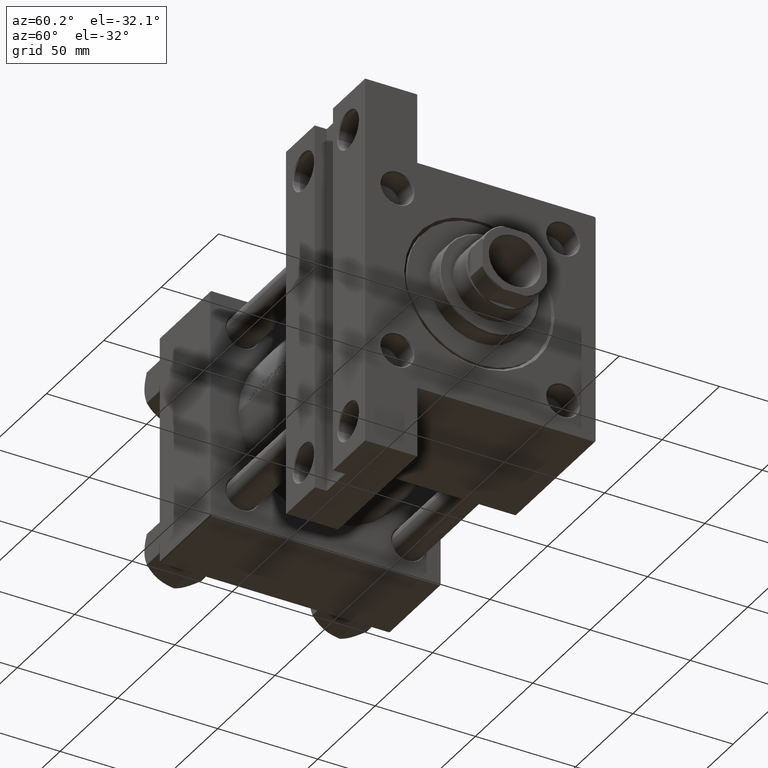
[diagram: clean part render]
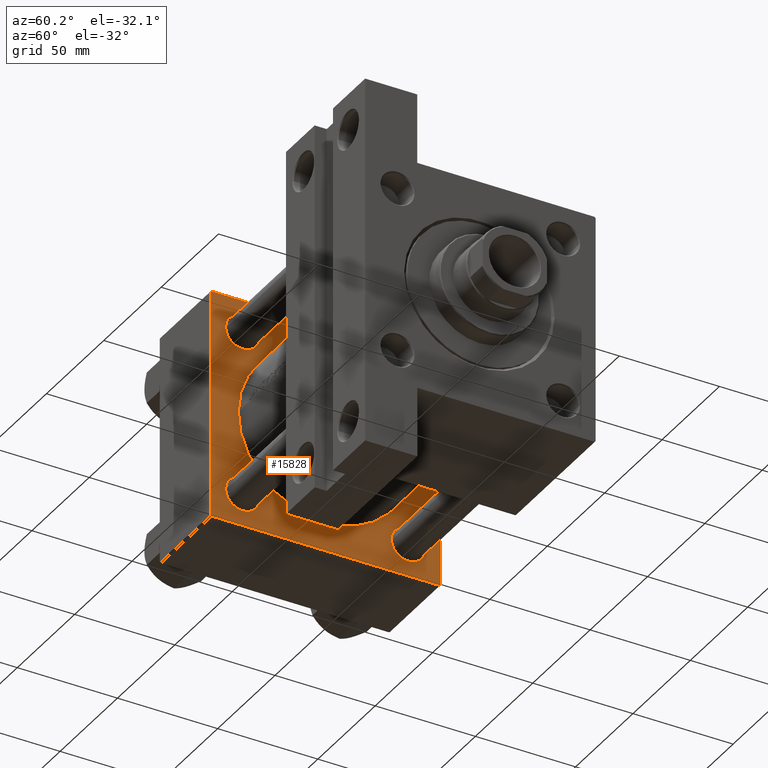
[diagram: same view with one face highlighted and labeled with its STEP entity id]
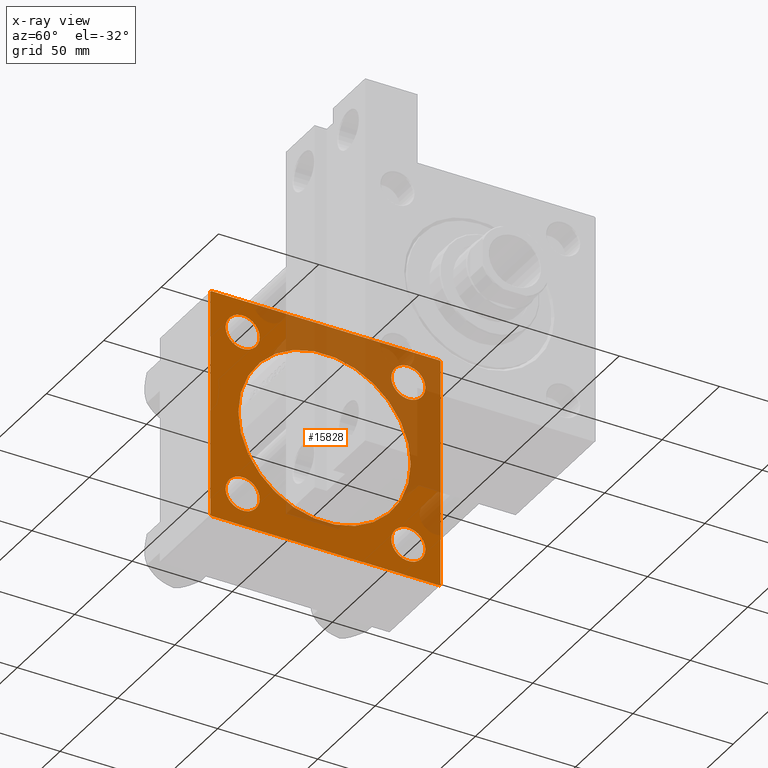
[diagram: x-ray of the same camera — body ghosted, the highlighted face saturated]
A machine part, auxiliary view. The second image highlights one B-rep face of the part: STEP entity #15828.
The next image is the same camera in x-ray: the body ghosted, the highlighted face saturated — about 38% of this face is hidden behind the body in this view.
In plain terms, the highlighted planar face has unit normal (-1, 0, -0).
Its self-contained STEP definition (entity closure, byte-faithful):
#458 = CARTESIAN_POINT ( 'NONE',  ( 44.00000000000000000, -41.34999999999998721, 49.85000000000004405 ) ) ;
#501 = CIRCLE ( 'NONE', #29230, 8.500000000000035527 ) ;
#895 = ORIENTED_EDGE ( 'NONE', *, *, #44408, .T. ) ;
#935 = CARTESIAN_POINT ( 'NONE',  ( 44.00000000000000000, 57.49999999999999289, -57.49999999999999289 ) ) ;
#1315 = ORIENTED_EDGE ( 'NONE', *, *, #16071, .F. ) ;
#1624 = CIRCLE ( 'NONE', #28807, 43.00000000000000000 ) ;
#1726 = ORIENTED_EDGE ( 'NONE', *, *, #19171, .F. ) ;
#2239 = ORIENTED_EDGE ( 'NONE', *, *, #23265, .T. ) ;
#3220 = VERTEX_POINT ( 'NONE', #15209 ) ;
#3495 = CARTESIAN_POINT ( 'NONE',  ( 44.00000000000000000, -57.00000000000000711, -57.50000000000000711 ) ) ;
#3522 = CARTESIAN_POINT ( 'NONE',  ( 44.00000000000000000, -57.00000000000000711, -57.50000000000000711 ) ) ;
#4137 = DIRECTION ( 'NONE',  ( 0.000000000000000000, -1.000000000000000000, -1.206764157201257045E-16 ) ) ;
#4642 = VECTOR ( 'NONE', #4137, 1000.000000000000000 ) ;
#5221 = ORIENTED_EDGE ( 'NONE', *, *, #8762, .T. ) ;
#5426 = FACE_BOUND ( 'NONE', #17151, .T. ) ;
#5576 = CARTESIAN_POINT ( 'NONE',  ( 44.00000000000000000, 41.34999999999999432, -41.35000000000000142 ) ) ;
#6389 = VECTOR ( 'NONE', #41080, 1000.000000000000000 ) ;
#6752 = AXIS2_PLACEMENT_3D ( 'NONE', #43355, #29472, #32663 ) ;
#6801 = LINE ( 'NONE', #22101, #33137 ) ;
#7033 = LINE ( 'NONE', #25496, #31104 ) ;
#8529 = CIRCLE ( 'NONE', #26355, 8.500000000000035527 ) ;
#8540 = DIRECTION ( 'NONE',  ( 1.000000000000000000, -0.000000000000000000, 0.000000000000000000 ) ) ;
#8658 = DIRECTION ( 'NONE',  ( -1.000000000000000000, 0.000000000000000000, -0.000000000000000000 ) ) ;
#8762 = EDGE_CURVE ( 'NONE', #30950, #27391, #32703, .T. ) ;
#9298 = AXIS2_PLACEMENT_3D ( 'NONE', #28589, #21298, #43200 ) ;
#9516 = EDGE_CURVE ( 'NONE', #16428, #3220, #501, .T. ) ;
#9634 = EDGE_CURVE ( 'NONE', #9775, #47880, #6801, .T. ) ;
#9775 = VERTEX_POINT ( 'NONE', #19394 ) ;
#9813 = ORIENTED_EDGE ( 'NONE', *, *, #39466, .T. ) ;
#9817 = EDGE_CURVE ( 'NONE', #16927, #40271, #10146, .T. ) ;
#10146 = LINE ( 'NONE', #11103, #41833 ) ;
#10200 = EDGE_CURVE ( 'NONE', #44981, #45085, #47263, .T. ) ;
#10365 = CARTESIAN_POINT ( 'NONE',  ( 44.00000000000000000, 6.123233995736685917E-17, -0.4999999999999935052 ) ) ;
#11103 = CARTESIAN_POINT ( 'NONE',  ( 44.00000000000000000, -57.50000000000000711, 57.00000000000000711 ) ) ;
#11111 = EDGE_LOOP ( 'NONE', ( #1726, #30078, #33513, #9813, #18328, #19821, #33432, #5221 ) ) ;
#11381 = ORIENTED_EDGE ( 'NONE', *, *, #9516, .T. ) ;
#11484 = EDGE_LOOP ( 'NONE', ( #14538, #16770 ) ) ;
#11956 = DIRECTION ( 'NONE',  ( 0.000000000000000000, 0.000000000000000000, 1.000000000000000000 ) ) ;
#12495 = VECTOR ( 'NONE', #31560, 1000.000000000000114 ) ;
#12612 = CARTESIAN_POINT ( 'NONE',  ( 44.00000000000000000, 57.00000000000000711, 57.50000000000000711 ) ) ;
#13119 = DIRECTION ( 'NONE',  ( 0.000000000000000000, 0.000000000000000000, 1.000000000000000000 ) ) ;
#13390 = EDGE_CURVE ( 'NONE', #19067, #32353, #8529, .T. ) ;
#13772 = DIRECTION ( 'NONE',  ( 1.000000000000000000, -0.000000000000000000, 0.000000000000000000 ) ) ;
#14316 = EDGE_CURVE ( 'NONE', #24013, #16439, #47423, .T. ) ;
#14371 = CARTESIAN_POINT ( 'NONE',  ( 44.00000000000000000, 41.34999999999999432, -32.84999999999997300 ) ) ;
#14433 = CIRCLE ( 'NONE', #41595, 8.500000000000035527 ) ;
#14458 = DIRECTION ( 'NONE',  ( 0.000000000000000000, 0.7071067811865474617, -0.7071067811865474617 ) ) ;
#14538 = ORIENTED_EDGE ( 'NONE', *, *, #26483, .T. ) ;
#14599 = CIRCLE ( 'NONE', #44111, 8.500000000000035527 ) ;
#14788 = EDGE_CURVE ( 'NONE', #40271, #30950, #7033, .T. ) ;
#15097 = LINE ( 'NONE', #44545, #4642 ) ;
#15209 = CARTESIAN_POINT ( 'NONE',  ( 44.00000000000000000, 41.34999999999999432, -49.85000000000003695 ) ) ;
#15828 = ADVANCED_FACE ( 'NONE', ( #20494, #5426, #17578, #24869, #28272, #46540 ), #32420, .F. ) ;
#15970 = CARTESIAN_POINT ( 'NONE',  ( 44.00000000000000000, 41.34999999999999432, 32.84999999999997300 ) ) ;
#16071 = EDGE_CURVE ( 'NONE', #16439, #24013, #1624, .T. ) ;
#16412 = CARTESIAN_POINT ( 'NONE',  ( 44.00000000000000000, 57.00000000000002132, -57.49999999999999289 ) ) ;
#16428 = VERTEX_POINT ( 'NONE', #14371 ) ;
#16439 = VERTEX_POINT ( 'NONE', #25053 ) ;
#16770 = ORIENTED_EDGE ( 'NONE', *, *, #13390, .T. ) ;
#16927 = VERTEX_POINT ( 'NONE', #19249 ) ;
#16946 = VECTOR ( 'NONE', #34167, 1000.000000000000114 ) ;
#16963 = CARTESIAN_POINT ( 'NONE',  ( 44.00000000000000000, -57.50000000000000711, -57.00000000000000711 ) ) ;
#17151 = EDGE_LOOP ( 'NONE', ( #26413, #11381 ) ) ;
#17578 = FACE_BOUND ( 'NONE', #11484, .T. ) ;
#18148 = CARTESIAN_POINT ( 'NONE',  ( 44.00000000000000000, 41.34999999999999432, 49.85000000000003695 ) ) ;
#18152 = DIRECTION ( 'NONE',  ( -1.000000000000000000, 0.000000000000000000, -0.000000000000000000 ) ) ;
#18225 = DIRECTION ( 'NONE',  ( 0.000000000000000000, 0.000000000000000000, -1.000000000000000000 ) ) ;
#18328 = ORIENTED_EDGE ( 'NONE', *, *, #37512, .T. ) ;
#18383 = CARTESIAN_POINT ( 'NONE',  ( 44.00000000000000000, 41.34999999999999432, 41.35000000000000142 ) ) ;
#18872 = AXIS2_PLACEMENT_3D ( 'NONE', #20314, #8658, #24448 ) ;
#19067 = VERTEX_POINT ( 'NONE', #458 ) ;
#19171 = EDGE_CURVE ( 'NONE', #43303, #27391, #34262, .T. ) ;
#19249 = CARTESIAN_POINT ( 'NONE',  ( 44.00000000000000000, -57.00000000000003553, 57.49999999999999289 ) ) ;
#19394 = CARTESIAN_POINT ( 'NONE',  ( 44.00000000000000000, 57.49999999999999289, 57.00000000000003553 ) ) ;
#19821 = ORIENTED_EDGE ( 'NONE', *, *, #9817, .T. ) ;
#20172 = ORIENTED_EDGE ( 'NONE', *, *, #28995, .T. ) ;
#20249 = CARTESIAN_POINT ( 'NONE',  ( 44.00000000000000000, 0.000000000000000000, 0.000000000000000000 ) ) ;
#20314 = CARTESIAN_POINT ( 'NONE',  ( 44.00000000000000000, -41.34999999999998721, -41.35000000000000853 ) ) ;
#20410 = DIRECTION ( 'NONE',  ( -1.000000000000000000, 0.000000000000000000, -0.000000000000000000 ) ) ;
#20494 = FACE_BOUND ( 'NONE', #40577, .T. ) ;
#20715 = CIRCLE ( 'NONE', #6752, 8.500000000000035527 ) ;
#21298 = DIRECTION ( 'NONE',  ( -1.000000000000000000, 0.000000000000000000, -0.000000000000000000 ) ) ;
#21347 = VERTEX_POINT ( 'NONE', #18148 ) ;
#21496 = EDGE_LOOP ( 'NONE', ( #20172, #2239 ) ) ;
#21964 = CIRCLE ( 'NONE', #18872, 8.500000000000035527 ) ;
#22091 = DIRECTION ( 'NONE',  ( 0.000000000000000000, 0.000000000000000000, -1.000000000000000000 ) ) ;
#22101 = CARTESIAN_POINT ( 'NONE',  ( 44.00000000000000000, 57.49999999999999289, 57.50000000000000711 ) ) ;
#22220 = EDGE_CURVE ( 'NONE', #43303, #47880, #22735, .T. ) ;
#22497 = DIRECTION ( 'NONE',  ( 0.000000000000000000, 0.000000000000000000, 1.000000000000000000 ) ) ;
#22735 = LINE ( 'NONE', #37810, #16946 ) ;
#22935 = VECTOR ( 'NONE', #14458, 1000.000000000000114 ) ;
#23091 = CARTESIAN_POINT ( 'NONE',  ( 44.00000000000000000, -41.34999999999998721, -41.35000000000000853 ) ) ;
#23265 = EDGE_CURVE ( 'NONE', #21347, #35845, #14433, .T. ) ;
#23310 = VERTEX_POINT ( 'NONE', #28001 ) ;
#24013 = VERTEX_POINT ( 'NONE', #48094 ) ;
#24448 = DIRECTION ( 'NONE',  ( 0.000000000000000000, 0.000000000000000000, 1.000000000000000000 ) ) ;
#24560 = ORIENTED_EDGE ( 'NONE', *, *, #14316, .F. ) ;
#24869 = FACE_BOUND ( 'NONE', #21496, .T. ) ;
#25053 = CARTESIAN_POINT ( 'NONE',  ( 44.00000000000000000, 5.327213576290985256E-15, -43.49999999999999289 ) ) ;
#25496 = CARTESIAN_POINT ( 'NONE',  ( 44.00000000000000000, -57.50000000000000711, 57.49999999999999289 ) ) ;
#25911 = DIRECTION ( 'NONE',  ( -0.000000000000000000, -0.7071067811865376918, -0.7071067811865573427 ) ) ;
#26355 = AXIS2_PLACEMENT_3D ( 'NONE', #33855, #28573, #32482 ) ;
#26413 = ORIENTED_EDGE ( 'NONE', *, *, #36687, .T. ) ;
#26483 = EDGE_CURVE ( 'NONE', #32353, #19067, #20715, .T. ) ;
#27391 = VERTEX_POINT ( 'NONE', #3522 ) ;
#28001 = CARTESIAN_POINT ( 'NONE',  ( 44.00000000000000000, 57.00000000000000711, 57.50000000000000711 ) ) ;
#28272 = FACE_BOUND ( 'NONE', #36426, .T. ) ;
#28573 = DIRECTION ( 'NONE',  ( -1.000000000000000000, 0.000000000000000000, -0.000000000000000000 ) ) ;
#28589 = CARTESIAN_POINT ( 'NONE',  ( 44.00000000000000000, 41.34999999999999432, -41.35000000000000142 ) ) ;
#28807 = AXIS2_PLACEMENT_3D ( 'NONE', #45517, #8540, #11956 ) ;
#28995 = EDGE_CURVE ( 'NONE', #35845, #21347, #14599, .T. ) ;
#29230 = AXIS2_PLACEMENT_3D ( 'NONE', #5576, #20410, #35980 ) ;
#29472 = DIRECTION ( 'NONE',  ( -1.000000000000000000, 0.000000000000000000, -0.000000000000000000 ) ) ;
#29722 = CARTESIAN_POINT ( 'NONE',  ( 44.00000000000000000, -57.50000000000000711, 57.00000000000000711 ) ) ;
#30078 = ORIENTED_EDGE ( 'NONE', *, *, #22220, .T. ) ;
#30711 = DIRECTION ( 'NONE',  ( 0.000000000000000000, 0.000000000000000000, 1.000000000000000000 ) ) ;
#30950 = VERTEX_POINT ( 'NONE', #16963 ) ;
#31104 = VECTOR ( 'NONE', #22091, 1000.000000000000000 ) ;
#31560 = DIRECTION ( 'NONE',  ( 0.000000000000000000, -0.7071067811865573427, 0.7071067811865376918 ) ) ;
#32353 = VERTEX_POINT ( 'NONE', #39231 ) ;
#32420 = PLANE ( 'NONE',  #44356 ) ;
#32482 = DIRECTION ( 'NONE',  ( 0.000000000000000000, 0.000000000000000000, 1.000000000000000000 ) ) ;
#32663 = DIRECTION ( 'NONE',  ( 0.000000000000000000, 0.000000000000000000, 1.000000000000000000 ) ) ;
#32703 = LINE ( 'NONE', #3495, #22935 ) ;
#33137 = VECTOR ( 'NONE', #18225, 1000.000000000000000 ) ;
#33432 = ORIENTED_EDGE ( 'NONE', *, *, #14788, .T. ) ;
#33513 = ORIENTED_EDGE ( 'NONE', *, *, #9634, .F. ) ;
#33855 = CARTESIAN_POINT ( 'NONE',  ( 44.00000000000000000, -41.34999999999998721, 41.35000000000000853 ) ) ;
#33978 = CARTESIAN_POINT ( 'NONE',  ( 44.00000000000000000, -41.34999999999998721, -49.85000000000004405 ) ) ;
#34167 = DIRECTION ( 'NONE',  ( -0.000000000000000000, 0.7071067811865376918, 0.7071067811865573427 ) ) ;
#34262 = LINE ( 'NONE', #935, #6389 ) ;
#34982 = AXIS2_PLACEMENT_3D ( 'NONE', #10365, #13772, #36853 ) ;
#35845 = VERTEX_POINT ( 'NONE', #15970 ) ;
#35980 = DIRECTION ( 'NONE',  ( 0.000000000000000000, 0.000000000000000000, 1.000000000000000000 ) ) ;
#36426 = EDGE_LOOP ( 'NONE', ( #24560, #1315 ) ) ;
#36687 = EDGE_CURVE ( 'NONE', #3220, #16428, #41133, .T. ) ;
#36853 = DIRECTION ( 'NONE',  ( 0.000000000000000000, 0.000000000000000000, 1.000000000000000000 ) ) ;
#37512 = EDGE_CURVE ( 'NONE', #23310, #16927, #15097, .T. ) ;
#37810 = CARTESIAN_POINT ( 'NONE',  ( 44.00000000000000000, 57.49999999999999289, -57.00000000000000711 ) ) ;
#38247 = CARTESIAN_POINT ( 'NONE',  ( 44.00000000000000000, 41.34999999999999432, 41.35000000000000142 ) ) ;
#38993 = DIRECTION ( 'NONE',  ( -1.000000000000000000, 0.000000000000000000, -0.000000000000000000 ) ) ;
#39231 = CARTESIAN_POINT ( 'NONE',  ( 44.00000000000000000, -41.34999999999998721, 32.84999999999997300 ) ) ;
#39466 = EDGE_CURVE ( 'NONE', #9775, #23310, #42510, .T. ) ;
#40129 = CARTESIAN_POINT ( 'NONE',  ( 44.00000000000000000, 57.49999999999999289, -57.00000000000000711 ) ) ;
#40271 = VERTEX_POINT ( 'NONE', #29722 ) ;
#40363 = ORIENTED_EDGE ( 'NONE', *, *, #10200, .T. ) ;
#40577 = EDGE_LOOP ( 'NONE', ( #895, #40363 ) ) ;
#41080 = DIRECTION ( 'NONE',  ( 0.000000000000000000, -1.000000000000000000, -1.206764157201257045E-16 ) ) ;
#41133 = CIRCLE ( 'NONE', #9298, 8.500000000000035527 ) ;
#41595 = AXIS2_PLACEMENT_3D ( 'NONE', #38247, #45552, #30711 ) ;
#41833 = VECTOR ( 'NONE', #25911, 1000.000000000000114 ) ;
#42510 = LINE ( 'NONE', #12612, #12495 ) ;
#43122 = DIRECTION ( 'NONE',  ( -0.000000000000000000, 0.000000000000000000, 1.000000000000000000 ) ) ;
#43200 = DIRECTION ( 'NONE',  ( 0.000000000000000000, 0.000000000000000000, 1.000000000000000000 ) ) ;
#43303 = VERTEX_POINT ( 'NONE', #16412 ) ;
#43355 = CARTESIAN_POINT ( 'NONE',  ( 44.00000000000000000, -41.34999999999998721, 41.35000000000000853 ) ) ;
#43753 = CARTESIAN_POINT ( 'NONE',  ( 44.00000000000000000, -41.34999999999998721, -32.84999999999997300 ) ) ;
#44111 = AXIS2_PLACEMENT_3D ( 'NONE', #18383, #18152, #22497 ) ;
#44356 = AXIS2_PLACEMENT_3D ( 'NONE', #20249, #38993, #43122 ) ;
#44408 = EDGE_CURVE ( 'NONE', #45085, #44981, #21964, .T. ) ;
#44545 = CARTESIAN_POINT ( 'NONE',  ( 44.00000000000000000, 57.49999999999999289, 57.50000000000000711 ) ) ;
#44932 = AXIS2_PLACEMENT_3D ( 'NONE', #23091, #45958, #13119 ) ;
#44981 = VERTEX_POINT ( 'NONE', #43753 ) ;
#45085 = VERTEX_POINT ( 'NONE', #33978 ) ;
#45517 = CARTESIAN_POINT ( 'NONE',  ( 44.00000000000000000, 6.123233995736685917E-17, -0.4999999999999935052 ) ) ;
#45552 = DIRECTION ( 'NONE',  ( -1.000000000000000000, 0.000000000000000000, -0.000000000000000000 ) ) ;
#45958 = DIRECTION ( 'NONE',  ( -1.000000000000000000, 0.000000000000000000, -0.000000000000000000 ) ) ;
#46540 = FACE_OUTER_BOUND ( 'NONE', #11111, .T. ) ;
#47263 = CIRCLE ( 'NONE', #44932, 8.500000000000035527 ) ;
#47423 = CIRCLE ( 'NONE', #34982, 43.00000000000000000 ) ;
#47880 = VERTEX_POINT ( 'NONE', #40129 ) ;
#48094 = CARTESIAN_POINT ( 'NONE',  ( 44.00000000000000000, 6.123233995736685917E-17, 42.50000000000000000 ) ) ;